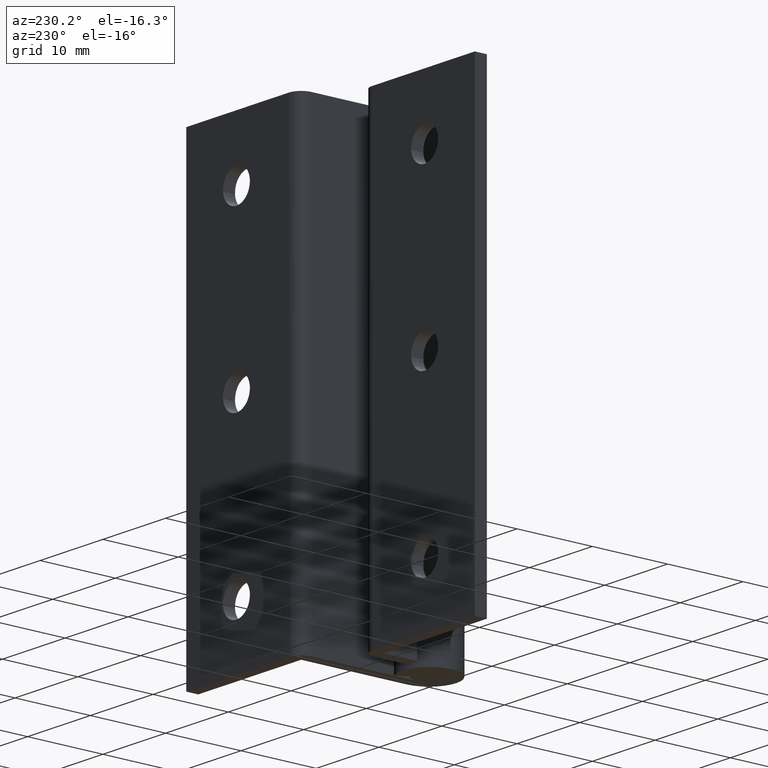
[diagram: clean part render]
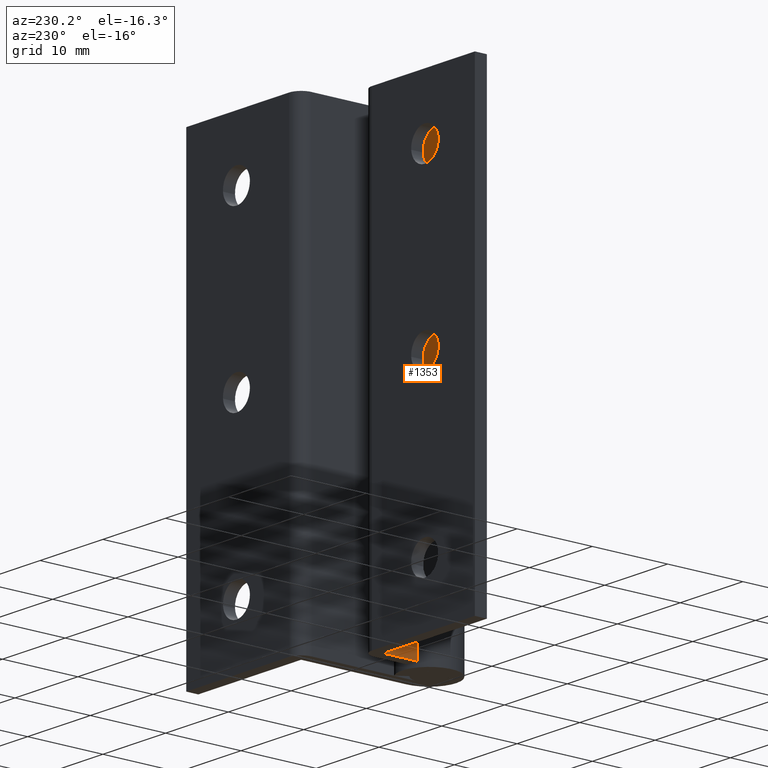
[diagram: same view with one face highlighted and labeled with its STEP entity id]
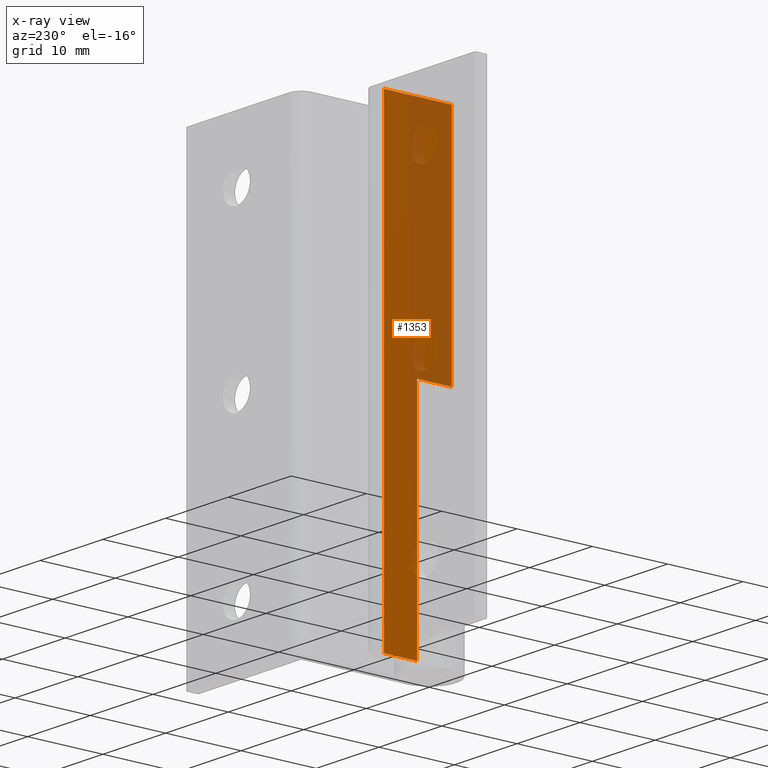
[diagram: x-ray of the same camera — body ghosted, the highlighted face saturated]
A machine part, auxiliary view. The second image highlights one B-rep face of the part: STEP entity #1353.
The next image is the same camera in x-ray: the body ghosted, the highlighted face saturated — about 46% of this face is hidden behind the body in this view.
In plain terms, the highlighted face is a freeform B-spline surface patch.
Its self-contained STEP definition (entity closure, byte-faithful):
#1058=CARTESIAN_POINT('',(-3.599998000000000,4.599998000000000,29.999991999999999));
#1059=VERTEX_POINT('',#1058);
#1065=CARTESIAN_POINT('',(-3.599998000000000,4.599998000000000,0.0));
#1066=VERTEX_POINT('',#1065);
#1067=CARTESIAN_POINT('',(-3.599998000000000,4.599998000000000,0.0));
#1068=CARTESIAN_POINT('',(-3.599998000000000,4.599998000000000,29.999991999999999));
#1069=QUASI_UNIFORM_CURVE('',1,(#1067,#1068),.UNSPECIFIED.,.F.,.U.);
#1070=EDGE_CURVE('',#1066,#1059,#1069,.T.);
#1120=CARTESIAN_POINT('',(-3.599998000000000,-0.003794732665980,29.999991999999999));
#1121=VERTEX_POINT('',#1120);
#1141=CARTESIAN_POINT('',(-3.599998000000000,4.599998000000000,29.999991999999999));
#1142=CARTESIAN_POINT('',(-3.599998000000000,-0.003794732665980,29.999991999999999));
#1143=QUASI_UNIFORM_CURVE('',1,(#1141,#1142),.UNSPECIFIED.,.F.,.U.);
#1144=EDGE_CURVE('',#1059,#1121,#1143,.T.);
#1177=CARTESIAN_POINT('',(-3.599998000000000,9.0,59.999991999999999));
#1178=VERTEX_POINT('',#1177);
#1184=CARTESIAN_POINT('',(-3.599998000000000,-0.003794732665980,59.999991999999999));
#1185=VERTEX_POINT('',#1184);
#1186=CARTESIAN_POINT('',(-3.599998000000000,-0.003794732665980,59.999991999999999));
#1187=CARTESIAN_POINT('',(-3.599998000000000,9.0,59.999991999999999));
#1188=QUASI_UNIFORM_CURVE('',1,(#1186,#1187),.UNSPECIFIED.,.F.,.U.);
#1189=EDGE_CURVE('',#1185,#1178,#1188,.T.);
#1316=CARTESIAN_POINT('',(-3.599998000000000,9.0,0.0));
#1317=VERTEX_POINT('',#1316);
#1318=CARTESIAN_POINT('',(-3.599998000000000,4.599998000000000,0.0));
#1319=CARTESIAN_POINT('',(-3.599998000000000,9.0,0.0));
#1320=QUASI_UNIFORM_CURVE('',1,(#1318,#1319),.UNSPECIFIED.,.F.,.U.);
#1321=EDGE_CURVE('',#1066,#1317,#1320,.T.);
#1332=CARTESIAN_POINT('',(-3.599998000000000,-0.453534262111545,-2.996999484108369));
#1333=CARTESIAN_POINT('',(-3.599998000000000,9.449739770946158,-2.996999484108369));
#1334=CARTESIAN_POINT('',(-3.599998000000000,-0.453534262111545,62.996993093433581));
#1335=CARTESIAN_POINT('',(-3.599998000000000,9.449739770946158,62.996993093433581));
#1336=B_SPLINE_SURFACE_WITH_KNOTS('',1,1,((#1332,#1334),(#1333,#1335)),.UNSPECIFIED.,.F.,.F.,.U.,(2,2),(2,2),(0.0,9.903274033057702),(0.0,65.993992577541945),.UNSPECIFIED.);
#1337=ORIENTED_EDGE('',*,*,#1144,.T.);
#1338=CARTESIAN_POINT('',(-3.599998000000000,-0.003794732665980,29.999991999999999));
#1339=CARTESIAN_POINT('',(-3.599998000000000,-0.003794732665980,59.999991999999999));
#1340=QUASI_UNIFORM_CURVE('',1,(#1338,#1339),.UNSPECIFIED.,.F.,.U.);
#1341=EDGE_CURVE('',#1121,#1185,#1340,.T.);
#1342=ORIENTED_EDGE('',*,*,#1341,.T.);
#1343=ORIENTED_EDGE('',*,*,#1189,.T.);
#1344=CARTESIAN_POINT('',(-3.599998000000000,9.0,0.0));
#1345=CARTESIAN_POINT('',(-3.599998000000000,9.0,59.999991999999999));
#1346=QUASI_UNIFORM_CURVE('',1,(#1344,#1345),.UNSPECIFIED.,.F.,.U.);
#1347=EDGE_CURVE('',#1317,#1178,#1346,.T.);
#1348=ORIENTED_EDGE('',*,*,#1347,.F.);
#1349=ORIENTED_EDGE('',*,*,#1321,.F.);
#1350=ORIENTED_EDGE('',*,*,#1070,.T.);
#1351=EDGE_LOOP('',(#1337,#1342,#1343,#1348,#1349,#1350));
#1352=FACE_OUTER_BOUND('',#1351,.T.);
#1353=ADVANCED_FACE('',(#1352),#1336,.F.);